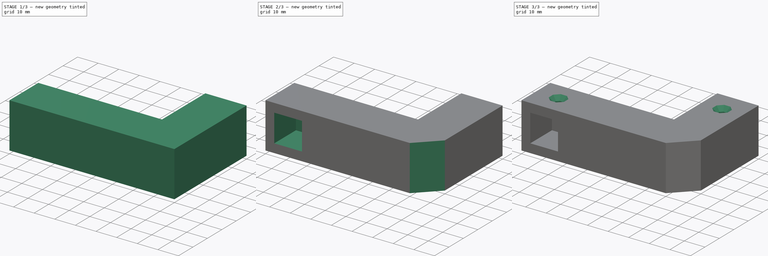
[diagram: build sequence overview — one tinted view per stage of 3, left to right]
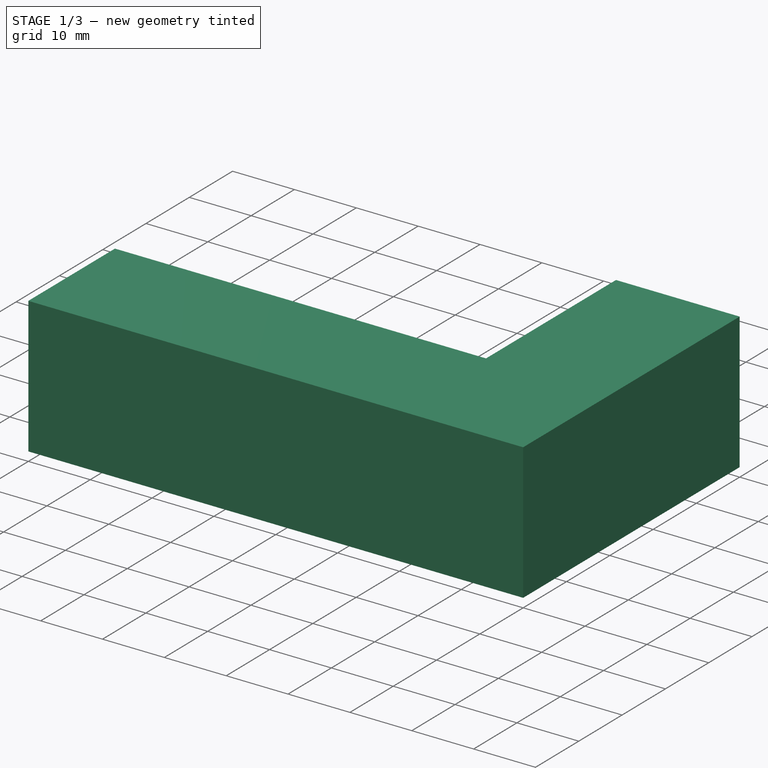
[diagram: stage 1 of 3 — iso view after this stage's code; geometry added in this stage tinted green]
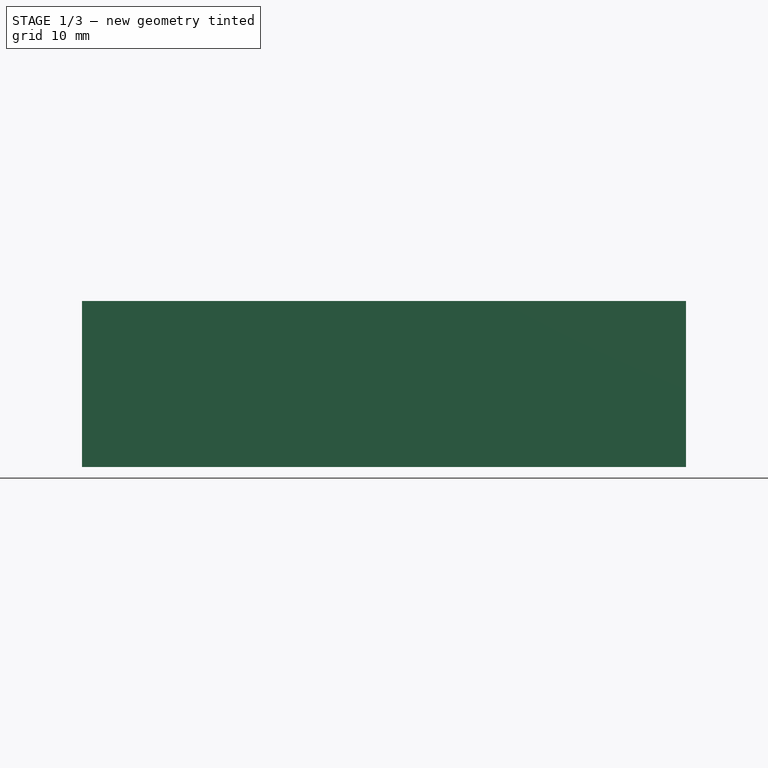
[diagram: stage 1 of 3 — front view after this stage's code; geometry added in this stage tinted green]
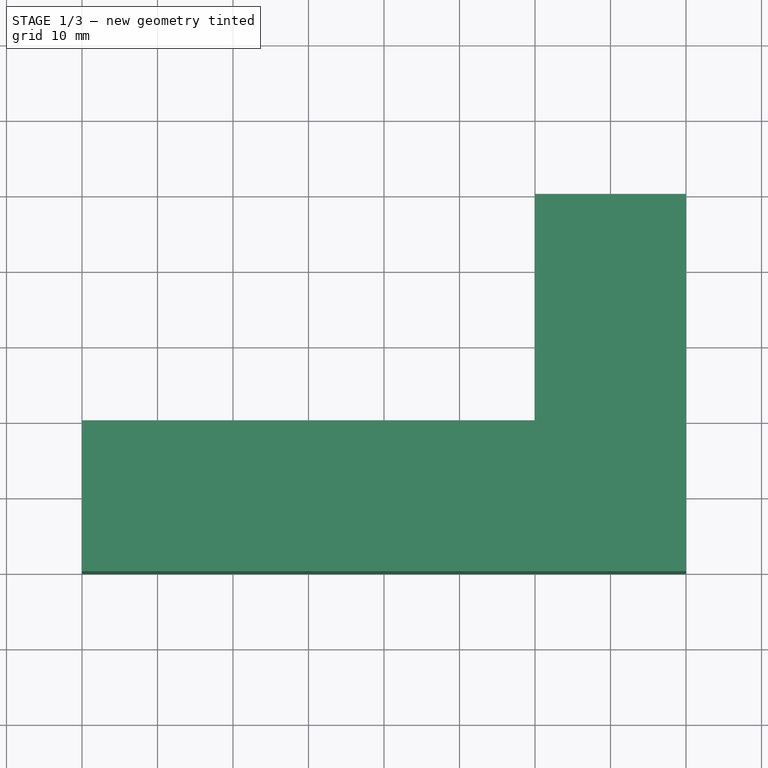
[diagram: stage 1 of 3 — top view after this stage's code; geometry added in this stage tinted green]
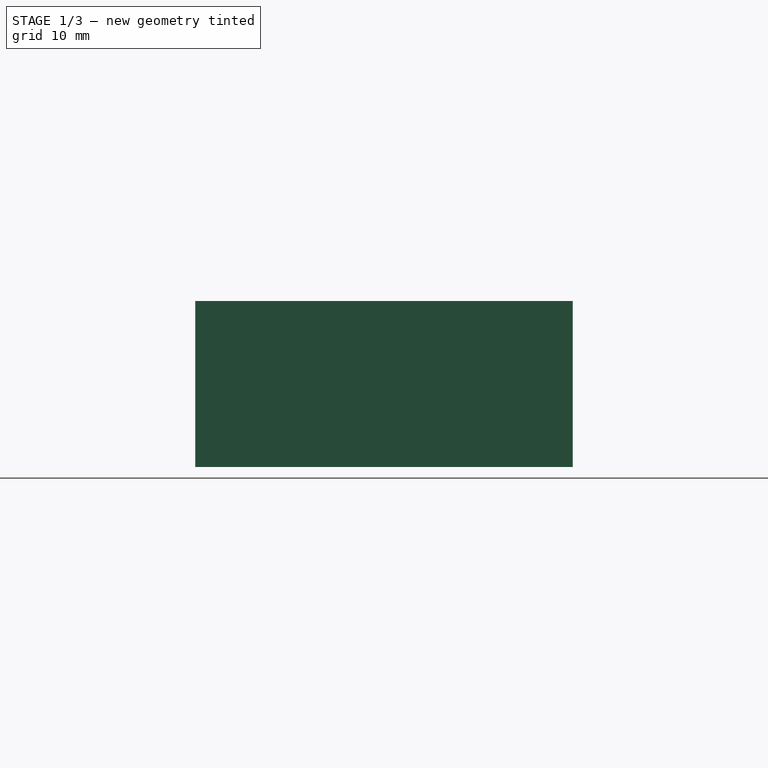
[diagram: stage 1 of 3 — right view after this stage's code; geometry added in this stage tinted green]
FCSTD DOCUMENT  (FreeCAD 0.17R13634 (Git))
Label: ElbowSLink V1
License: All rights reserved
LicenseURL: http://en.wikipedia.org/wiki/All_rights_reserved
objects: Sketcher::SketchObject×4, PartDesign::Pocket×3, PartDesign::Chamfer×2, PartDesign::Pad×1, PartDesign::Body×1
note: 15 computed .brp shape members not serialized (recipe doc carries the construction recipe); baked Part::Feature solids carry a one-line shape summary decoded from their .brp

FEATURE [Sketcher::SketchObject] Sketch  label="L_profile"
  MapMode = 5
  Support = -> [XY_Plane]
  sketch-geometry (6):
    g0: LineSegment StartX=0 StartY=30 StartZ=0 EndX=0 EndY=0 EndZ=0
    g1: LineSegment StartX=0 StartY=0 StartZ=0 EndX=-60 EndY=0 EndZ=0
    g2: LineSegment StartX=-60 StartY=0 StartZ=0 EndX=-60 EndY=-20 EndZ=0
    g3: LineSegment StartX=-60 StartY=-20 StartZ=0 EndX=20 EndY=-20 EndZ=0
    g4: LineSegment StartX=20 StartY=-20 StartZ=0 EndX=20 EndY=30 EndZ=0
    g5: LineSegment StartX=20 StartY=30 StartZ=0 EndX=0 EndY=30 EndZ=0
  constraints (18):
    c: PointOnObject(g0,g-2)
    c: PointOnObject(g0,g-2)
    c: Coincident(g0,g1)
    c: Horizontal(g1)
    c: Coincident(g1,g2)
    c: Vertical(g2)
    c: Coincident(g2,g3)
    c: Horizontal(g3)
    c: Coincident(g3,g4)
    c: Vertical(g4)
    c: Coincident(g4,g5)
    c: Coincident(g5,g0)
    c: Horizontal(g5)
    c: Distance(g1) = 60
    c: Distance(g4) = 50
    c: Distance(g2) = 20
    c: Coincident(g0,g-1)
    c: Distance(g5) = 20
FEATURE [PartDesign::Pad] Pad
  Length = 22
  Length2 = 100
  Profile = -> Sketch
  Type = 0
FEATURE [Sketcher::SketchObject] Sketch001  label="SqaureHole1"
  ExternalGeometry = -> [Pad]
  MapMode = 5
  Placement = pos=(0,0,0) rot=(0.57735,-0.57735,-0.57735;2.0944rad)
  Support = -> [Pad]
  sketch-geometry (11):
    g0: LineSegment [constr] StartX=0 StartY=22 StartZ=0 EndX=-30 EndY=0 EndZ=0
    g1: LineSegment [constr] StartX=0 StartY=0 StartZ=0 EndX=-30 EndY=22 EndZ=0
    g2: GeomPoint X=-15 Y=11 Z=0
    g3: LineSegment StartX=-25.725 StartY=17.725 StartZ=0 EndX=-12.275 EndY=17.725 EndZ=0
    g4: LineSegment StartX=-12.275 StartY=17.725 StartZ=0 EndX=-12.275 EndY=4.275 EndZ=0
    g5: LineSegment StartX=-12.275 StartY=4.275 StartZ=0 EndX=-25.725 EndY=4.275 EndZ=0
    g6: LineSegment StartX=-25.725 StartY=4.275 StartZ=0 EndX=-25.725 EndY=17.725 EndZ=0
    g7: LineSegment [constr] StartX=-25.725 StartY=17.725 StartZ=0 EndX=-12.275 EndY=4.275 EndZ=0
    g8: LineSegment [constr] StartX=-12.275 StartY=17.725 StartZ=0 EndX=-25.725 EndY=4.275 EndZ=0
    g9: GeomPoint X=-19 Y=11 Z=0
    g10: LineSegment [constr] StartX=-25.725 StartY=17.725 StartZ=0 EndX=-30 EndY=22 EndZ=0
  constraints (26):
    c: Coincident(g0,g-5)
    c: Coincident(g0,g-4)
    c: Coincident(g1,g-1)
    c: Coincident(g1,g-5)
    c: PointOnObject(g2,g0)
    c: PointOnObject(g2,g1)
    c: Coincident(g3,g4)
    c: Coincident(g4,g5)
    c: Coincident(g5,g6)
    c: Coincident(g6,g3)
    c: Horizontal(g3)
    c: Horizontal(g5)
    c: Vertical(g4)
    c: Vertical(g6)
    c: Equal(g6,g5)
    c: Coincident(g7,g3)
    c: Coincident(g7,g4)
    c: Coincident(g8,g3)
    c: Coincident(g8,g5)
    c: PointOnObject(g9,g8)
    c: PointOnObject(g9,g7)
    c: DistanceY(g2,g9) = 0
    c: Coincident(g10,g3)
    c: Coincident(g10,g1)
    c: Angle(g10) = 2.35619
    c: Distance(g3) = 13.45
FEATURE [PartDesign::Pocket] Pocket
  BaseFeature = -> Pad
  Length = 15
  Length2 = 100
  Profile = -> Sketch001
  Type = 0
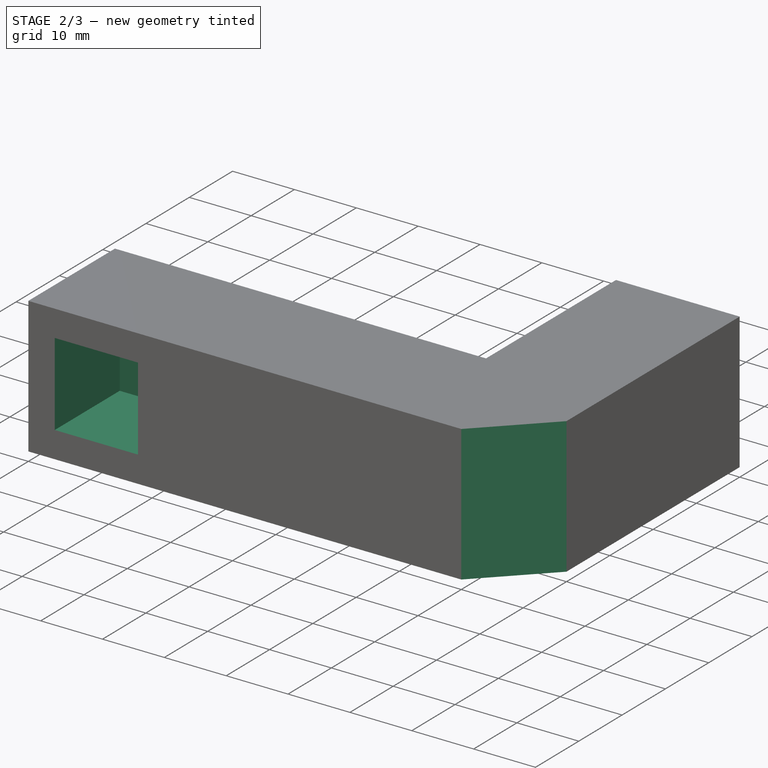
[diagram: stage 2 of 3 — iso view after this stage's code; geometry added in this stage tinted green]
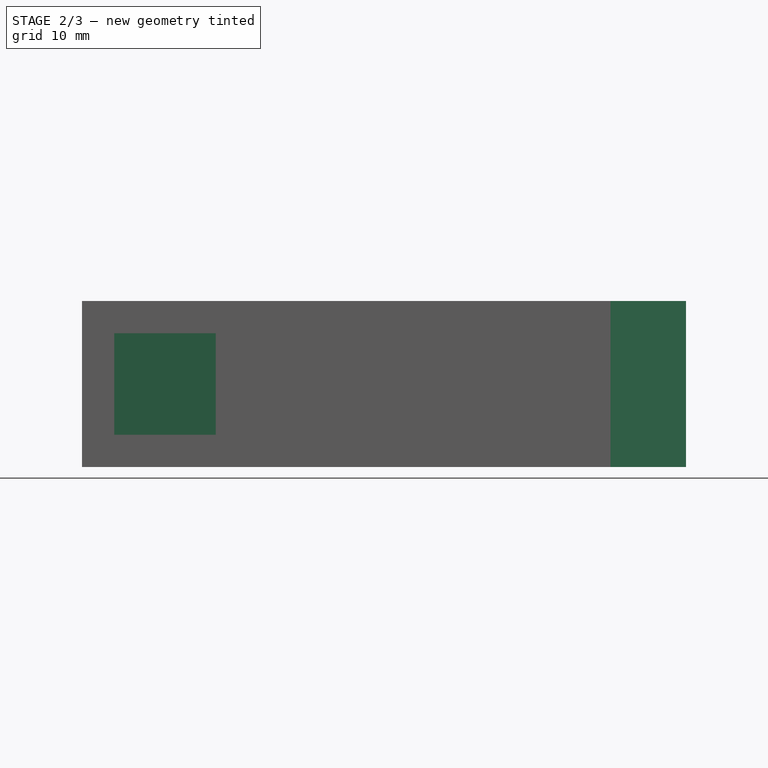
[diagram: stage 2 of 3 — front view after this stage's code; geometry added in this stage tinted green]
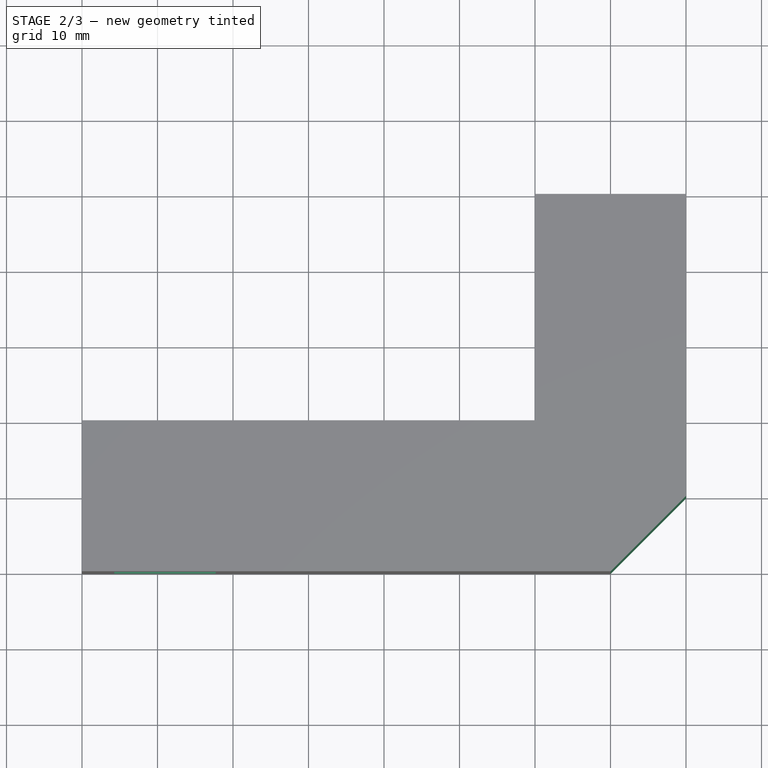
[diagram: stage 2 of 3 — top view after this stage's code; geometry added in this stage tinted green]
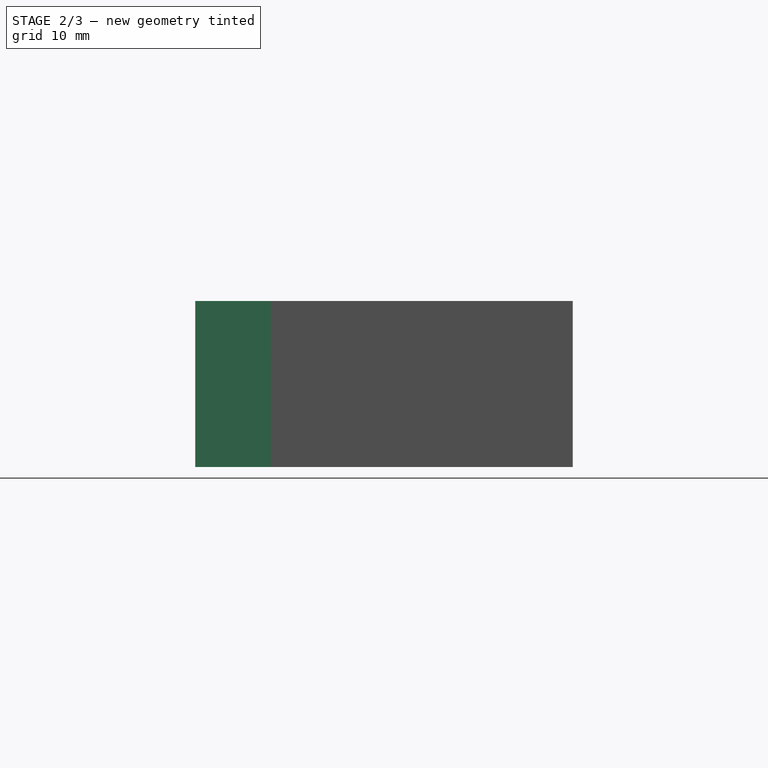
[diagram: stage 2 of 3 — right view after this stage's code; geometry added in this stage tinted green]
FEATURE [Sketcher::SketchObject] Sketch002  label="SquareHole2"
  ExternalGeometry = -> [Pocket]
  MapMode = 5
  Placement = pos=(0,-20,0) rot=(1,0,0;1.5708rad)
  Support = -> [Pocket]
  sketch-geometry (11):
    g0: LineSegment [constr] StartX=-60 StartY=22 StartZ=0 EndX=20 EndY=0 EndZ=0
    g1: LineSegment [constr] StartX=-60 StartY=0 StartZ=0 EndX=20 EndY=22 EndZ=0
    g2: GeomPoint X=-20 Y=11 Z=0
    g3: LineSegment StartX=-55.725 StartY=17.725 StartZ=0 EndX=-42.275 EndY=17.725 EndZ=0
    g4: LineSegment StartX=-42.275 StartY=17.725 StartZ=0 EndX=-42.275 EndY=4.275 EndZ=0
    g5: LineSegment StartX=-42.275 StartY=4.275 StartZ=0 EndX=-55.725 EndY=4.275 EndZ=0
    g6: LineSegment StartX=-55.725 StartY=4.275 StartZ=0 EndX=-55.725 EndY=17.725 EndZ=0
    g7: LineSegment [constr] StartX=-55.725 StartY=17.725 StartZ=0 EndX=-42.275 EndY=4.275 EndZ=0
    g8: LineSegment [constr] StartX=-42.275 StartY=17.725 StartZ=0 EndX=-55.725 EndY=4.275 EndZ=0
    g9: GeomPoint X=-49 Y=11 Z=0
    g10: LineSegment [constr] StartX=-55.725 StartY=17.725 StartZ=0 EndX=-60 EndY=22 EndZ=0
  constraints (26):
    c: Coincident(g0,g-3)
    c: Coincident(g0,g-4)
    c: Coincident(g1,g-3)
    c: Coincident(g1,g-4)
    c: PointOnObject(g2,g1)
    c: PointOnObject(g2,g0)
    c: Coincident(g3,g4)
    c: Coincident(g4,g5)
    c: Coincident(g5,g6)
    c: Coincident(g6,g3)
    c: Horizontal(g3)
    c: Horizontal(g5)
    c: Vertical(g4)
    c: Vertical(g6)
    c: Coincident(g7,g3)
    c: Coincident(g7,g4)
    c: Coincident(g8,g3)
    c: Coincident(g8,g5)
    c: PointOnObject(g9,g8)
    c: PointOnObject(g9,g7)
    c: DistanceY(g9,g2) = 0
    c: Equal(g3,g6)
    c: Coincident(g10,g3)
    c: Coincident(g10,g0)
    c: Angle(g10) = 2.35619
    c: Distance(g4) = 13.45
FEATURE [PartDesign::Pocket] Pocket001
  BaseFeature = -> Pocket
  Length = 15
  Length2 = 100
  Profile = -> Sketch002
  Type = 0
FEATURE [PartDesign::Chamfer] Chamfer
  Base = -> Pocket001 [Edge29]
  BaseFeature = -> Pocket001
  Size = 10
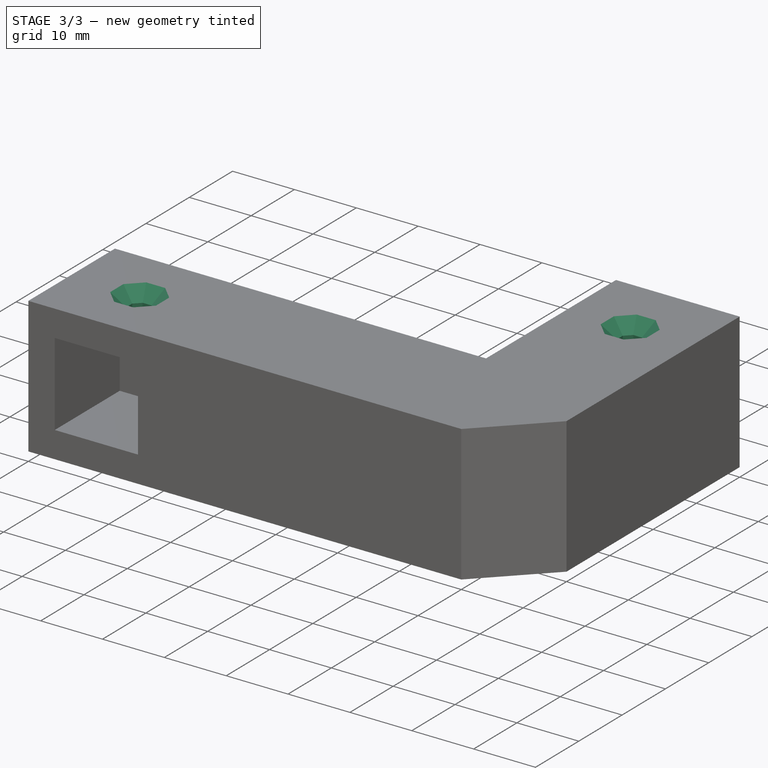
[diagram: stage 3 of 3 — iso view after this stage's code; geometry added in this stage tinted green]
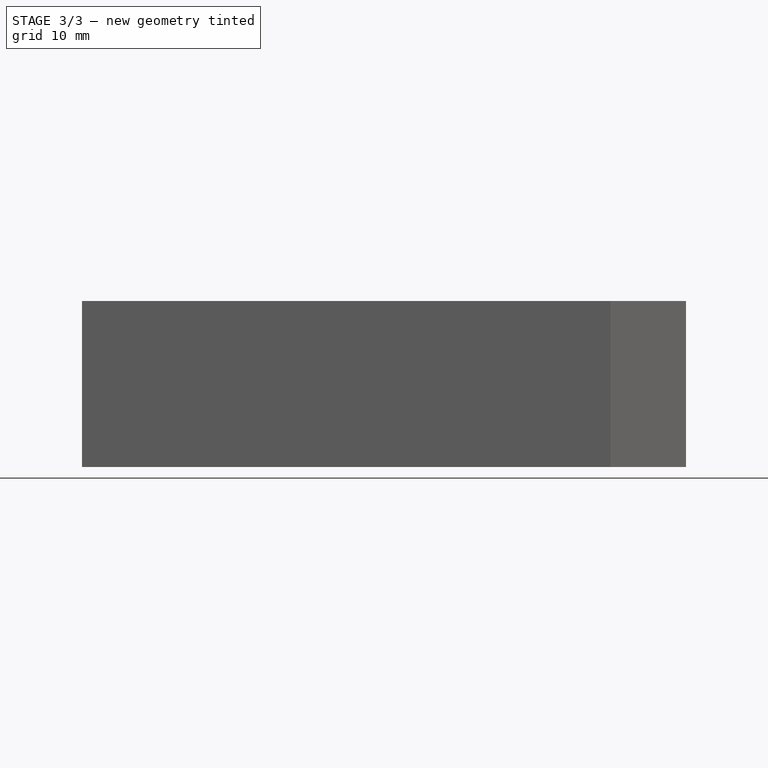
[diagram: stage 3 of 3 — front view after this stage's code; geometry added in this stage tinted green]
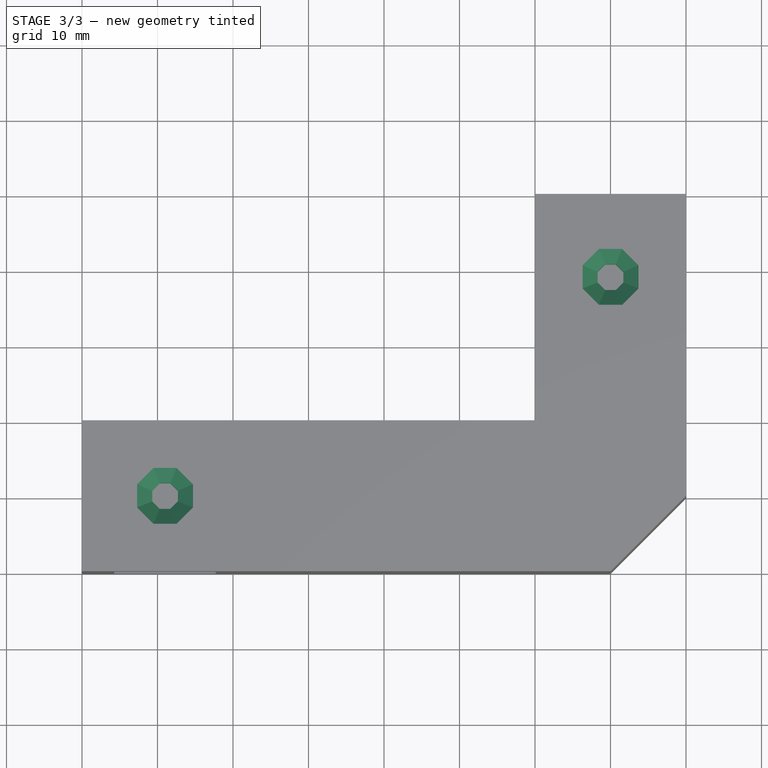
[diagram: stage 3 of 3 — top view after this stage's code; geometry added in this stage tinted green]
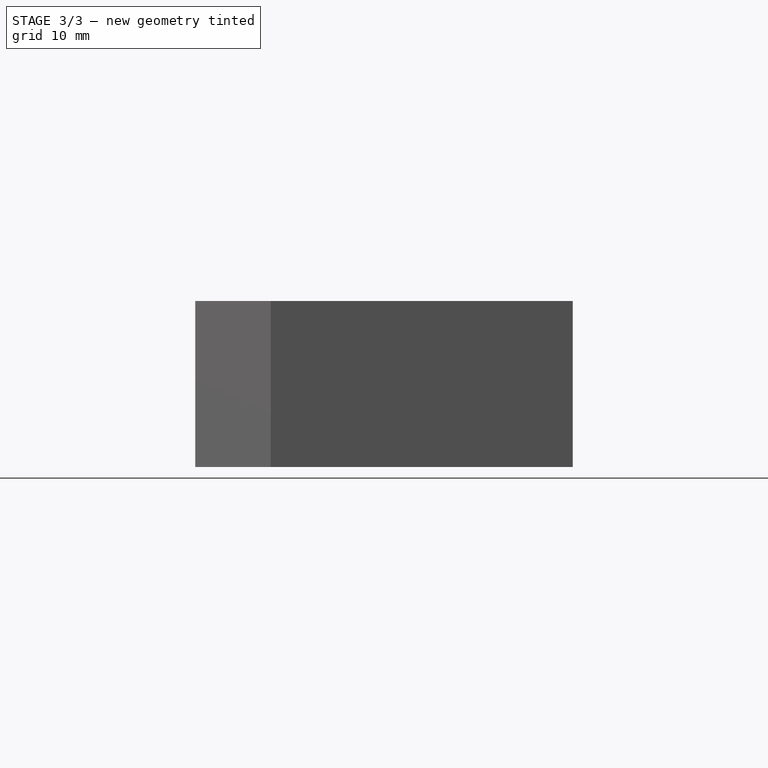
[diagram: stage 3 of 3 — right view after this stage's code; geometry added in this stage tinted green]
FEATURE [Sketcher::SketchObject] Sketch003  label="OctagonHoles"
  ExternalGeometry = -> [Chamfer]
  MapMode = 5
  Placement = pos=(0,0,22) rot=(0,0,1;0rad)
  Support = -> [Chamfer]
  sketch-geometry (22):
    g0: LineSegment StartX=9.29584 StartY=17.3 StartZ=0 EndX=10.7042 EndY=17.3 EndZ=0
    g1: LineSegment StartX=10.7042 StartY=17.3 StartZ=0 EndX=11.7 EndY=18.2958 EndZ=0
    g2: LineSegment StartX=11.7 StartY=18.2958 StartZ=0 EndX=11.7 EndY=19.7042 EndZ=0
    g3: LineSegment StartX=11.7 StartY=19.7042 StartZ=0 EndX=10.7042 EndY=20.7 EndZ=0
    g4: LineSegment StartX=10.7042 StartY=20.7 StartZ=0 EndX=9.29584 EndY=20.7 EndZ=0
    g5: LineSegment StartX=9.29584 StartY=20.7 StartZ=0 EndX=8.3 EndY=19.7042 EndZ=0
    g6: LineSegment StartX=8.3 StartY=19.7042 StartZ=0 EndX=8.3 EndY=18.2958 EndZ=0
    g7: LineSegment StartX=8.3 StartY=18.2958 StartZ=0 EndX=9.29584 EndY=17.3 EndZ=0
    g8: Circle [constr] CenterX=10 CenterY=19 CenterZ=0 NormalX=0 NormalY=0 NormalZ=1 AngleXU=0 Radius=1.84007
    g9: LineSegment StartX=-47.3 StartY=-10.7042 StartZ=0 EndX=-47.3 EndY=-9.29584 EndZ=0
    g10: LineSegment StartX=-47.3 StartY=-9.29584 StartZ=0 EndX=-48.2958 EndY=-8.3 EndZ=0
    g11: LineSegment StartX=-48.2958 StartY=-8.3 StartZ=0 EndX=-49.7042 EndY=-8.3 EndZ=0
    g12: LineSegment StartX=-49.7042 StartY=-8.3 StartZ=0 EndX=-50.7 EndY=-9.29584 EndZ=0
    g13: LineSegment StartX=-50.7 StartY=-9.29584 StartZ=0 EndX=-50.7 EndY=-10.7042 EndZ=0
    g14: LineSegment StartX=-50.7 StartY=-10.7042 StartZ=0 EndX=-49.7042 EndY=-11.7 EndZ=0
    g15: LineSegment StartX=-49.7042 StartY=-11.7 StartZ=0 EndX=-48.2958 EndY=-11.7 EndZ=0
    g16: LineSegment StartX=-48.2958 StartY=-11.7 StartZ=0 EndX=-47.3 EndY=-10.7042 EndZ=0
    g17: Circle [constr] CenterX=-49 CenterY=-10 CenterZ=0 NormalX=0 NormalY=0 NormalZ=1 AngleXU=0 Radius=1.84007
    g18: LineSegment [constr] StartX=0 StartY=30 StartZ=0 EndX=10 EndY=19 EndZ=0
    g19: LineSegment [constr] StartX=20 StartY=30 StartZ=0 EndX=10 EndY=19 EndZ=0
    g20: LineSegment [constr] StartX=-49 StartY=-10 StartZ=0 EndX=-60 EndY=0 EndZ=0
    g21: LineSegment [constr] StartX=-60 StartY=-20 StartZ=0 EndX=-49 EndY=-10 EndZ=0
  constraints (50):
    c: Coincident(g0,g1)
    c: Coincident(g1,g2)
    c: Coincident(g2,g3)
    c: Coincident(g3,g4)
    c: Coincident(g4,g5)
    c: Coincident(g5,g6)
    c: Coincident(g6,g7)
    c: Coincident(g7,g0)
    c: Equal(g0, g1-g7) x7
    c: PointOnObject(g0,g8)
    c: PointOnObject(g1,g8)
    c: PointOnObject(g2,g8)
    c: PointOnObject(g3,g8)
    c: PointOnObject(g4,g8)
    c: PointOnObject(g5,g8)
    c: PointOnObject(g6,g8)
    c: PointOnObject(g7,g8)
    c: Coincident(g9,g10)
    c: Coincident(g10,g11)
    c: Coincident(g11,g12)
    c: Coincident(g12,g13)
    c: Coincident(g13,g14)
    c: Coincident(g14,g15)
    c: Coincident(g15,g16)
    c: Coincident(g16,g9)
    c: Equal(g9, g10-g16) x7
    c: PointOnObject(g9,g17)
    c: PointOnObject(g10,g17)
    c: PointOnObject(g11,g17)
    c: PointOnObject(g12,g17)
    c: PointOnObject(g13,g17)
    c: PointOnObject(g14,g17)
    c: PointOnObject(g15,g17)
    c: PointOnObject(g16,g17)
    c: Horizontal(g4)
    c: Coincident(g18,g-4)
    c: Coincident(g18,g8)
    c: Coincident(g19,g-3)
    c: Coincident(g19,g8)
    c: Equal(g18,g19)
    c: DistanceY(g8,g19) = 11
    c: Distance(g5,g2) = 3.4
    c: Coincident(g20,g17)
    c: Coincident(g20,g-5)
    c: Coincident(g21,g-5)
    c: Coincident(g21,g17)
    c: Equal(g20,g21)
    c: DistanceX(g20,g17) = 11
    c: Horizontal(g11)
    c: Distance(g13,g9) = 3.4
FEATURE [PartDesign::Pocket] Pocket002
  BaseFeature = -> Chamfer
  Length = 5
  Length2 = 100
  Profile = -> Sketch003
  Type = 0
FEATURE [PartDesign::Chamfer] Chamfer001
  Base = -> Pocket002 [Edge32,Edge31,Edge30,Edge37,Edge36,Edge35,Edge34,Edge33,Edge44,Edge43,Edge42,Edge41,Edge40,Edge39,Edge38,Edge45]
  BaseFeature = -> Pocket002
  Size = 2
FEATURE [PartDesign::Body] Body
  Group = -> [Sketch,Pad,Sketch001,Pocket,Sketch002,Pocket001,Chamfer,Sketch003,Pocket002,Chamfer001]
  Origin = -> Origin
  Tip = -> Chamfer001
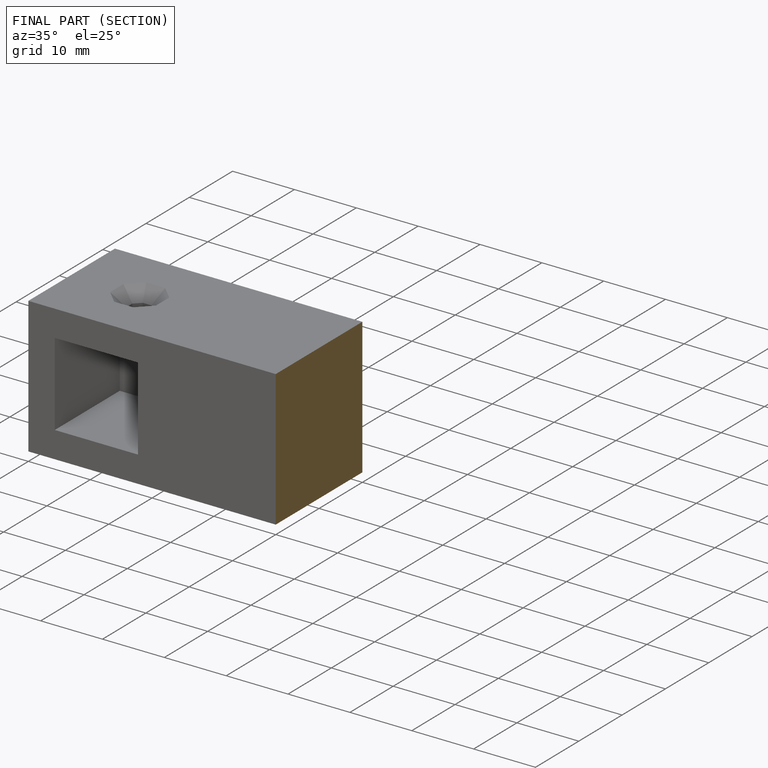
[diagram: finished part — half-section view (interior)]
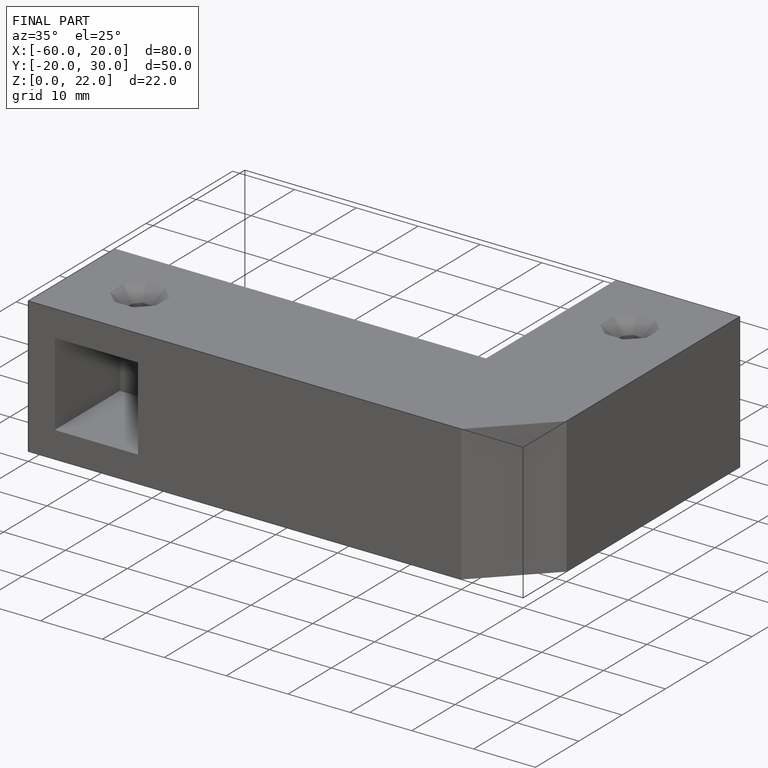
[diagram: finished part — iso view with bounding-box wireframe]
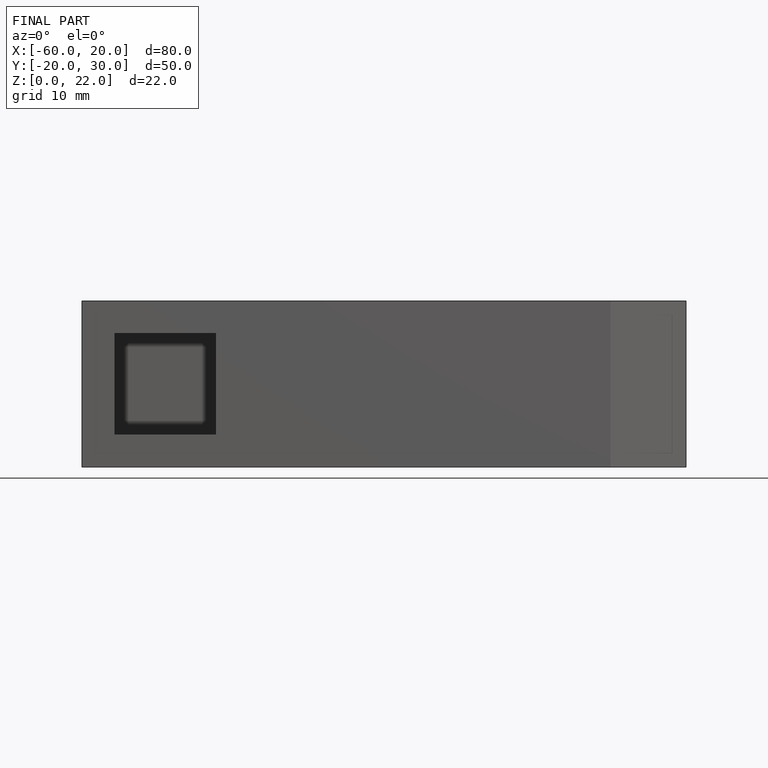
[diagram: finished part — front view with bounding-box wireframe]
